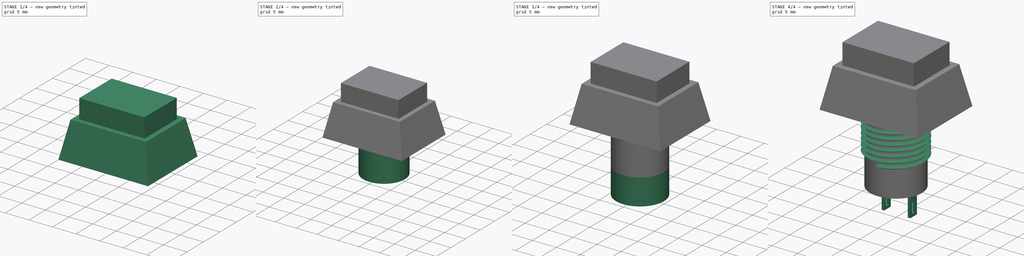
[diagram: build sequence overview — one tinted view per stage of 4, left to right]
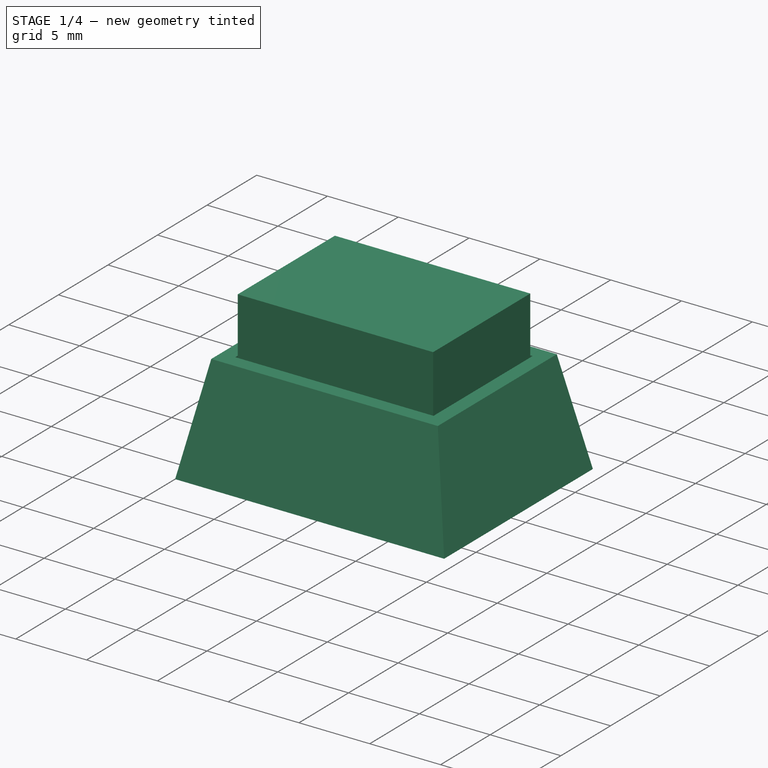
[diagram: stage 1 of 4 — iso view after this stage's code; geometry added in this stage tinted green]
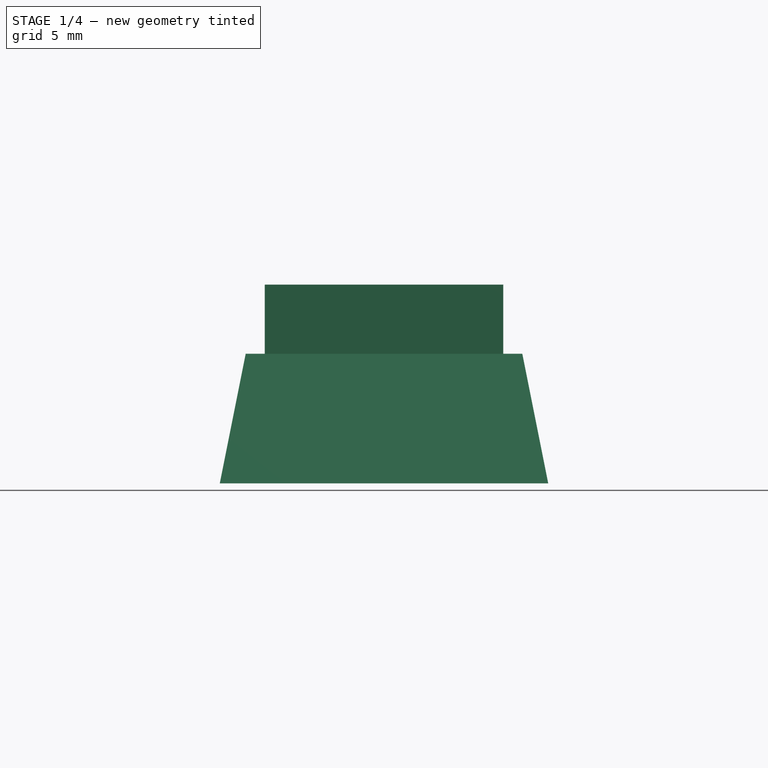
[diagram: stage 1 of 4 — front view after this stage's code; geometry added in this stage tinted green]
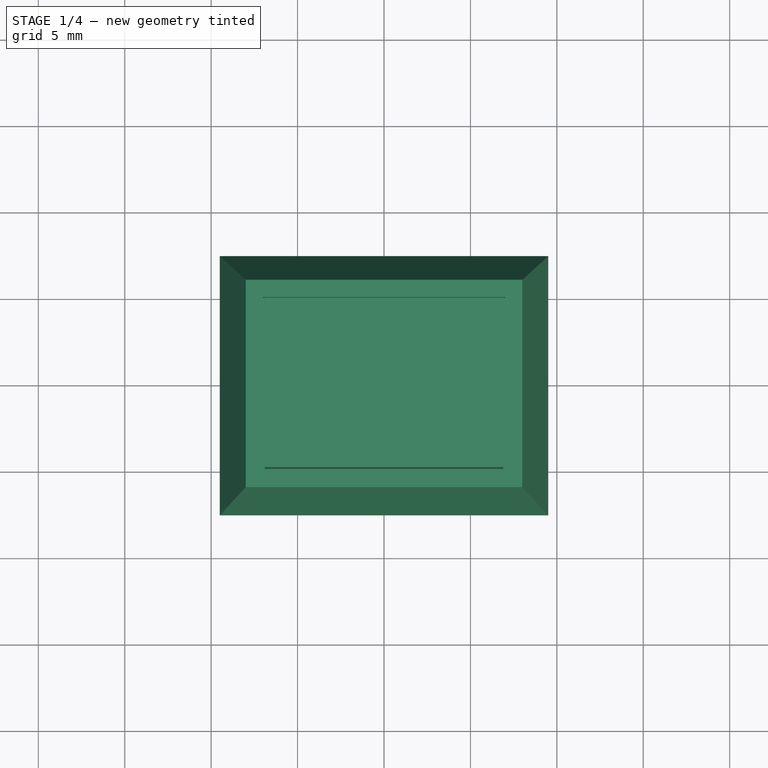
[diagram: stage 1 of 4 — top view after this stage's code; geometry added in this stage tinted green]
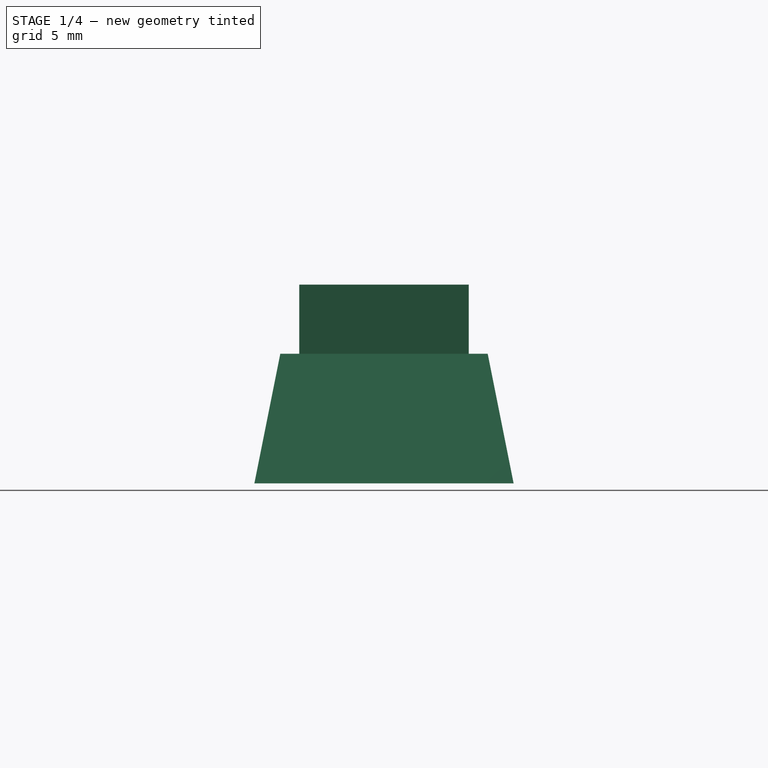
[diagram: stage 1 of 4 — right view after this stage's code; geometry added in this stage tinted green]
FCSTD DOCUMENT  (FreeCAD 0.18R16110 (Git))
Label: Miyama DS-462 3-3 Before Finishing
License: All rights reserved
LicenseURL: http://en.wikipedia.org/wiki/All_rights_reserved
objects: Sketcher::SketchObject×12, PartDesign::Pad×6, PartDesign::Pocket×3, PartDesign::AdditiveLoft×1, Part::Helix×1, PartDesign::ShapeBinder×1, PartDesign::AdditivePipe×1, PartDesign::Body×1
note: 37 computed .brp shape members not serialized (recipe doc carries the construction recipe); baked Part::Feature solids carry a one-line shape summary decoded from their .brp

FEATURE [Sketcher::SketchObject] Sketch  label="Body_Bottom_Plane"
  MapMode = 5
  Support = -> [XY_Plane]
  sketch-geometry (4):
    g0: LineSegment StartX=-9.5 StartY=7.5 StartZ=0 EndX=9.5 EndY=7.5 EndZ=0
    g1: LineSegment StartX=9.5 StartY=7.5 StartZ=0 EndX=9.5 EndY=-7.5 EndZ=0
    g2: LineSegment StartX=9.5 StartY=-7.5 StartZ=0 EndX=-9.5 EndY=-7.5 EndZ=0
    g3: LineSegment StartX=-9.5 StartY=-7.5 StartZ=0 EndX=-9.5 EndY=7.5 EndZ=0
  constraints (11):
    c: Coincident(g0,g1)
    c: Coincident(g1,g2)
    c: Coincident(g2,g3)
    c: Coincident(g3,g0)
    c: Horizontal(g0)
    c: Horizontal(g2)
    c: Vertical(g1)
    c: Vertical(g3)
    c: DistanceX(g0,g0) = 19
    c: DistanceY(g3,g3) = 15
    c: Symmetric(g0,g2,g-1)
FEATURE [Sketcher::SketchObject] Sketch001  label="Button_Projection"
  AttachmentOffset = pos=(0,0,7.5) rot=(0,0,1;0rad)
  MapMode = 5
  Placement = pos=(0,0,7.5) rot=(0,0,1;0rad)
  Support = -> [XY_Plane]
  sketch-geometry (4):
    g0: LineSegment StartX=-7 StartY=5 StartZ=0 EndX=7 EndY=5 EndZ=0
    g1: LineSegment StartX=7 StartY=5 StartZ=0 EndX=7 EndY=-5 EndZ=0
    g2: LineSegment StartX=7 StartY=-5 StartZ=0 EndX=-7 EndY=-5 EndZ=0
    g3: LineSegment StartX=-7 StartY=-5 StartZ=0 EndX=-7 EndY=5 EndZ=0
  constraints (11):
    c: Coincident(g0,g1)
    c: Coincident(g1,g2)
    c: Coincident(g2,g3)
    c: Coincident(g3,g0)
    c: Horizontal(g0)
    c: Horizontal(g2)
    c: Vertical(g1)
    c: Vertical(g3)
    c: DistanceX(g0,g0) = 14
    c: DistanceY(g1,g1) = 10
    c: Symmetric(g0,g2,g-1)
FEATURE [Sketcher::SketchObject] Sketch002  label="Body_Top_Plane"
  AttachmentOffset = pos=(0,0,7.5) rot=(0,0,1;0rad)
  ExternalGeometry = -> [Sketch001]
  MapMode = 5
  Placement = pos=(0,0,7.5) rot=(0,0,1;0rad)
  Support = -> [XY_Plane]
  sketch-geometry (4):
    g0: LineSegment StartX=-8 StartY=6 StartZ=0 EndX=8 EndY=6 EndZ=0
    g1: LineSegment StartX=8 StartY=6 StartZ=0 EndX=8 EndY=-6 EndZ=0
    g2: LineSegment StartX=8 StartY=-6 StartZ=0 EndX=-8 EndY=-6 EndZ=0
    g3: LineSegment StartX=-8 StartY=-6 StartZ=0 EndX=-8 EndY=6 EndZ=0
  constraints (11):
    c: Coincident(g0,g1)
    c: Coincident(g1,g2)
    c: Coincident(g2,g3)
    c: Coincident(g3,g0)
    c: Horizontal(g0)
    c: Horizontal(g2)
    c: Vertical(g1)
    c: Vertical(g3)
    c: Symmetric(g0,g2,g-1)
    c: DistanceY(g-4,g0) = 1
    c: DistanceX(g0,g-4) = 1
FEATURE [PartDesign::AdditiveLoft] AdditiveLoft
  Closed = true
  Profile = -> Sketch
  Ruled = false
  Sections = -> [Sketch002]
FEATURE [PartDesign::Pocket] Pocket
  BaseFeature = -> AdditiveLoft
  Length = 3
  Length2 = 100
  Profile = -> Sketch001
  Type = 0
FEATURE [Sketcher::SketchObject] Sketch004  label="Button"
  ExternalGeometry = -> [Pocket]
  MapMode = 5
  Placement = pos=(0,0,4.5) rot=(0,0,1;0rad)
  Support = -> [Pocket]
  sketch-geometry (4):
    g0: LineSegment StartX=-6.9 StartY=4.9 StartZ=0 EndX=6.9 EndY=4.9 EndZ=0
    g1: LineSegment StartX=6.9 StartY=4.9 StartZ=0 EndX=6.9 EndY=-4.9 EndZ=0
    g2: LineSegment StartX=6.9 StartY=-4.9 StartZ=0 EndX=-6.9 EndY=-4.9 EndZ=0
    g3: LineSegment StartX=-6.9 StartY=-4.9 StartZ=0 EndX=-6.9 EndY=4.9 EndZ=0
  constraints (11):
    c: Coincident(g0,g1)
    c: Coincident(g1,g2)
    c: Coincident(g2,g3)
    c: Coincident(g3,g0)
    c: Horizontal(g0)
    c: Horizontal(g2)
    c: Vertical(g1)
    c: Vertical(g3)
    c: Symmetric(g0,g2,g-1)
    c: DistanceX(g0,g-6) = 0.1
    c: DistanceY(g0,g-6) = 0.1
FEATURE [PartDesign::Pad] Pad
  BaseFeature = -> Pocket
  Length = 7
  Length2 = 100
  Profile = -> Sketch004
  Type = 0
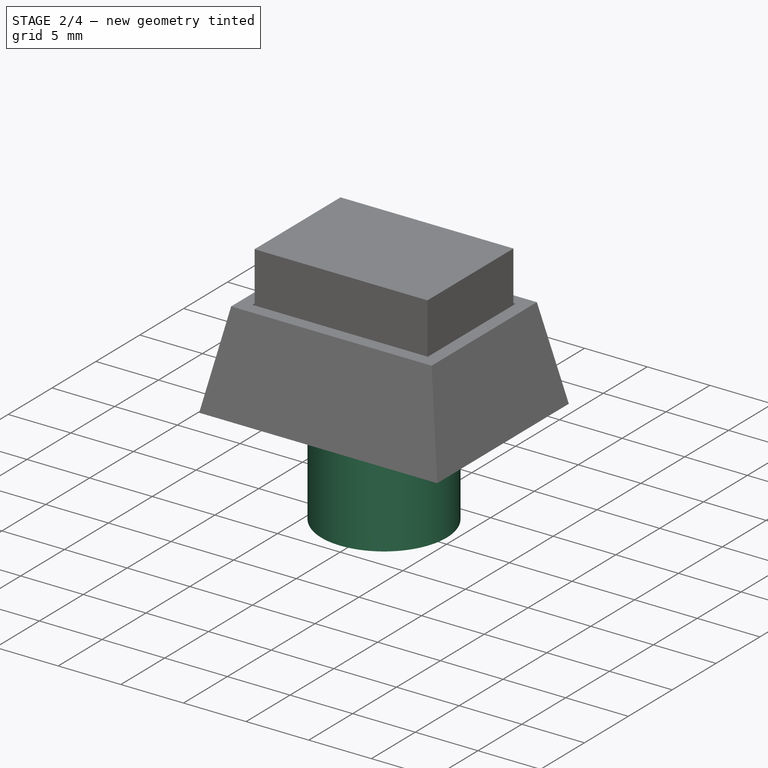
[diagram: stage 2 of 4 — iso view after this stage's code; geometry added in this stage tinted green]
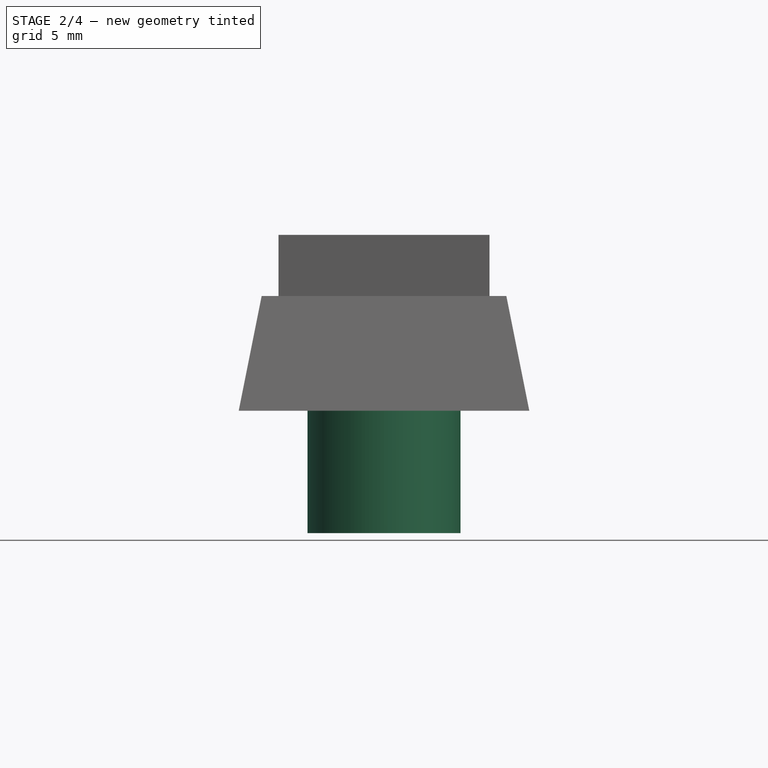
[diagram: stage 2 of 4 — front view after this stage's code; geometry added in this stage tinted green]
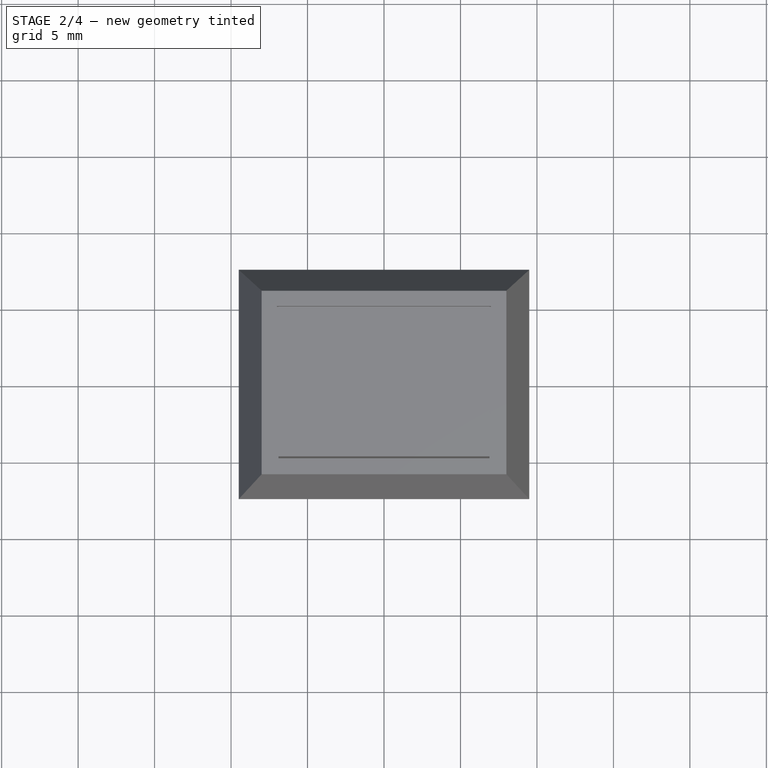
[diagram: stage 2 of 4 — top view after this stage's code; geometry added in this stage tinted green]
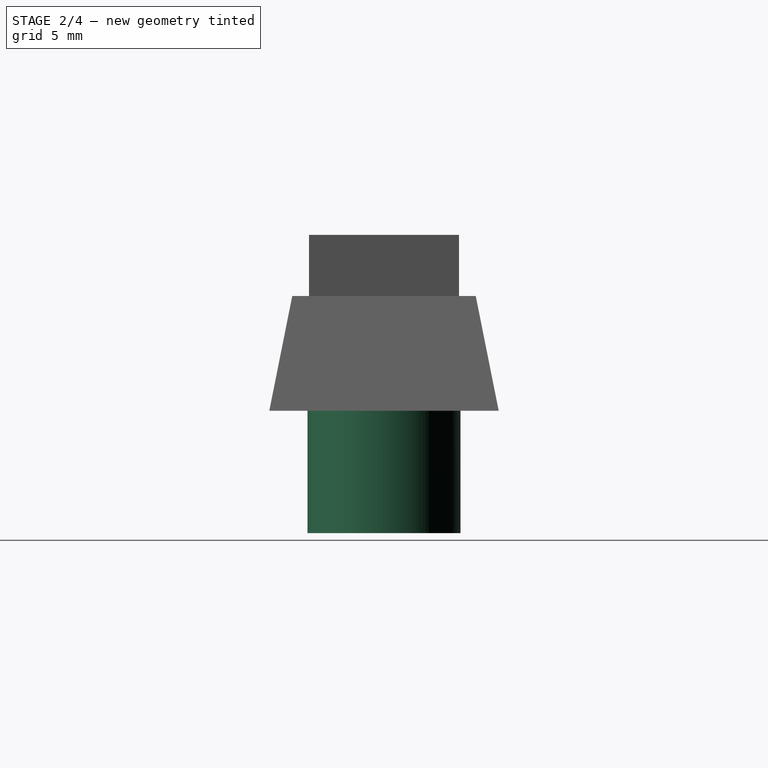
[diagram: stage 2 of 4 — right view after this stage's code; geometry added in this stage tinted green]
FEATURE [Sketcher::SketchObject] Sketch006
  ExternalGeometry = -> [Pad]
  MapMode = 5
  Placement = pos=(0,0,0) rot=(1,0,0;3.14159rad)
  Support = -> [Pad]
  sketch-geometry (4):
    g0: LineSegment StartX=-8.5 StartY=6.5 StartZ=0 EndX=8.5 EndY=6.5 EndZ=0
    g1: LineSegment StartX=8.5 StartY=6.5 StartZ=0 EndX=8.5 EndY=-6.5 EndZ=0
    g2: LineSegment StartX=8.5 StartY=-6.5 StartZ=0 EndX=-8.5 EndY=-6.5 EndZ=0
    g3: LineSegment StartX=-8.5 StartY=-6.5 StartZ=0 EndX=-8.5 EndY=6.5 EndZ=0
  constraints (11):
    c: Coincident(g0,g1)
    c: Coincident(g1,g2)
    c: Coincident(g2,g3)
    c: Coincident(g3,g0)
    c: Horizontal(g0)
    c: Horizontal(g2)
    c: Vertical(g1)
    c: Vertical(g3)
    c: DistanceY(g0,g-4) = 1
    c: DistanceX(g0,g-4) = 1
    c: Symmetric(g0,g2,g-1)
FEATURE [PartDesign::Pocket] Pocket001
  BaseFeature = -> Pad
  Length = 2.5
  Length2 = 100
  Profile = -> Sketch006
  Type = 0
FEATURE [Sketcher::SketchObject] Sketch007
  ExternalGeometry = -> [Sketch006,Sketch]
  MapMode = 5
  Placement = pos=(0,0,2.5) rot=(0,0,1;3.14159rad)
  Support = -> [Pocket001]
  sketch-geometry (2):
    g0: Circle CenterX=0 CenterY=0 CenterZ=0 NormalX=0 NormalY=0 NormalZ=1 AngleXU=0 Radius=7
    g1: LineSegment [constr] StartX=-8.5 StartY=6.5 StartZ=0 EndX=9.5 EndY=7.5 EndZ=0
  constraints (4):
    c: Coincident(g0,g-1)
    c: Coincident(g1,g-3)
    c: Coincident(g1,g-4)
    c: Radius(g0) = 7
FEATURE [PartDesign::Pad] Pad001
  BaseFeature = -> Pocket001
  Length = 2.5
  Length2 = 100
  Profile = -> Sketch007
  Reversed = true
  Type = 0
FEATURE [Sketcher::SketchObject] Sketch008
  AttachmentOffset = pos=(0,0,0) rot=(0,0,1;1.5708rad)
  MapMode = 5
  Placement = pos=(0,0,0) rot=(0.707107,-0.707107,0;3.14159rad)
  Support = -> [Pad001]
  sketch-geometry (1):
    g0: Circle CenterX=0 CenterY=0 CenterZ=0 NormalX=0 NormalY=0 NormalZ=1 AngleXU=0 Radius=5
  constraints (2):
    c: Coincident(g0,g-1)
    c: Radius(g0) = 5
FEATURE [PartDesign::Pad] Pad002
  BaseFeature = -> Pad001
  Length = 8
  Length2 = 100
  Profile = -> Sketch008
  Type = 0
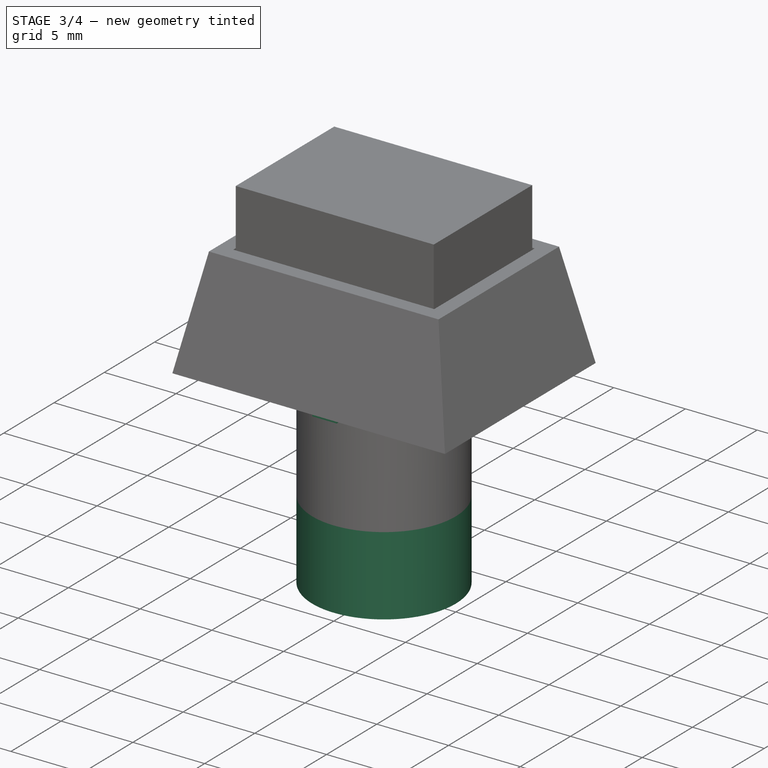
[diagram: stage 3 of 4 — iso view after this stage's code; geometry added in this stage tinted green]
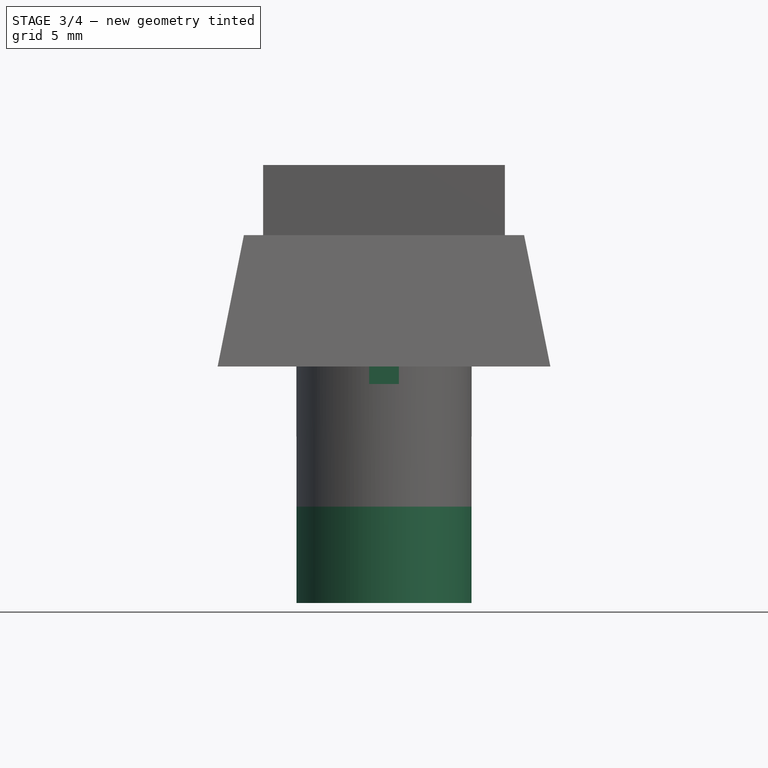
[diagram: stage 3 of 4 — front view after this stage's code; geometry added in this stage tinted green]
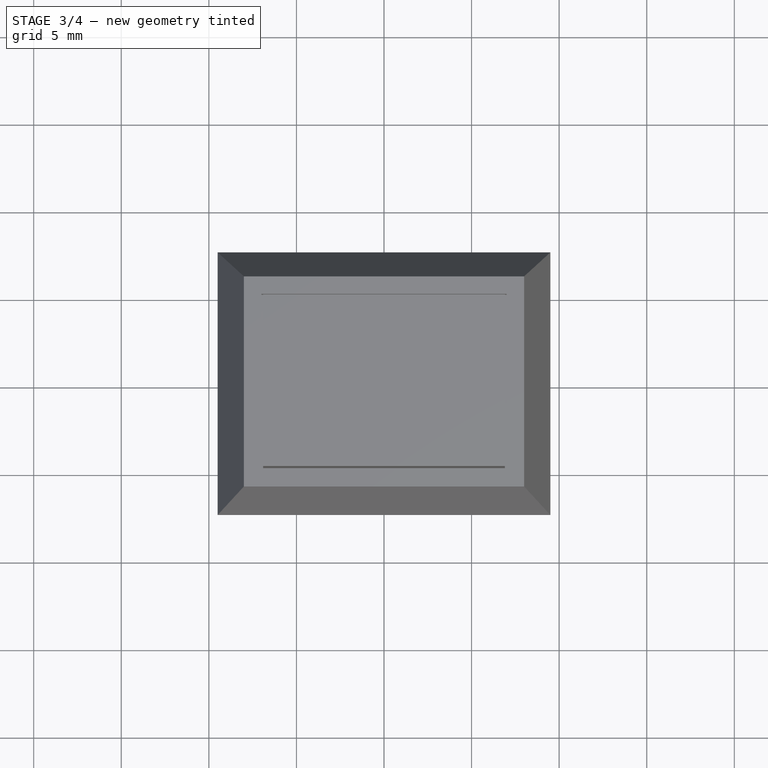
[diagram: stage 3 of 4 — top view after this stage's code; geometry added in this stage tinted green]
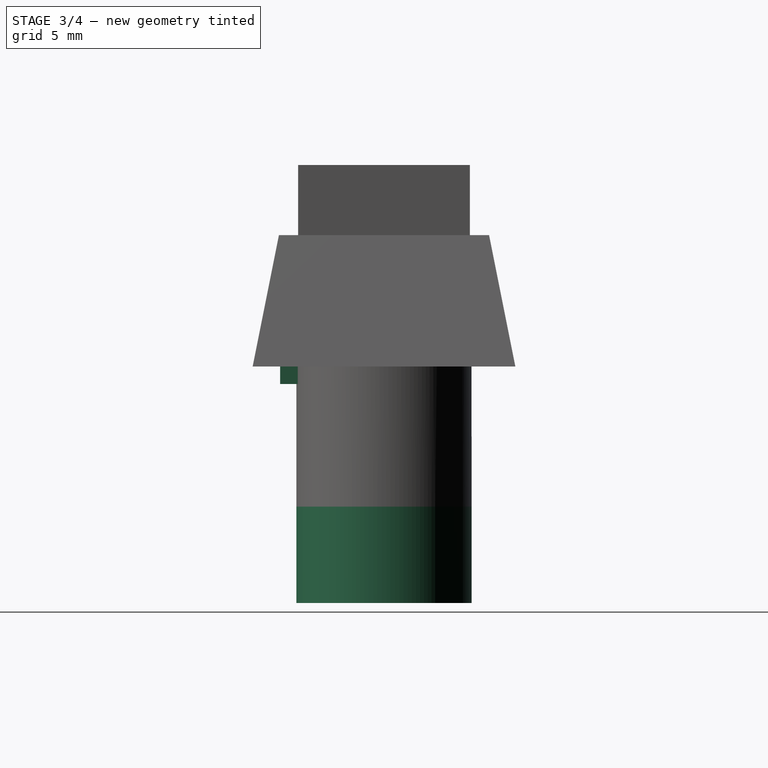
[diagram: stage 3 of 4 — right view after this stage's code; geometry added in this stage tinted green]
FEATURE [Sketcher::SketchObject] Sketch009
  ExternalGeometry = -> [Sketch008]
  MapMode = 5
  Placement = pos=(0,0,0) rot=(1,0,0;3.14159rad)
  Support = -> [Pad002]
  sketch-geometry (4):
    g0: LineSegment StartX=-0.85 StartY=5.92722 StartZ=0 EndX=0.85 EndY=5.92722 EndZ=0
    g1: LineSegment StartX=0.85 StartY=5.92722 StartZ=0 EndX=0.85 EndY=4.92722 EndZ=0
    g2: LineSegment StartX=-0.85 StartY=5.92722 StartZ=0 EndX=-0.85 EndY=4.92722 EndZ=0
    g3: ArcOfCircle CenterX=0 CenterY=0 CenterZ=0 NormalX=0 NormalY=0 NormalZ=1 AngleXU=0 Radius=5 StartAngle=1.39997 EndAngle=1.74163
  constraints (12):
    c: Horizontal(g0)
    c: Coincident(g1,g0)
    c: Vertical(g1)
    c: Coincident(g2,g0)
    c: Vertical(g2)
    c: Coincident(g3,g1)
    c: Coincident(g3,g2)
    c: DistanceY(g1,g1) = 1
    c: DistanceX(g0,g0) = 1.7
    c: Coincident(g3,g-1)
    c: Equal(g1,g2)
    c: Tangent(g3,g-3)
FEATURE [PartDesign::Pad] Pad003
  BaseFeature = -> Pad002
  Length = 1
  Length2 = 100
  Profile = -> Sketch009
  Type = 0
FEATURE [Sketcher::SketchObject] Sketch010
  AttachmentOffset = pos=(0,0,0) rot=(0,0,1;1.5708rad)
  ExternalGeometry = -> [Pad002]
  MapMode = 5
  Placement = pos=(0,0,-8) rot=(0.707107,-0.707107,0;3.14159rad)
  Support = -> [Pad002]
  sketch-geometry (1):
    g0: Circle CenterX=0 CenterY=0 CenterZ=0 NormalX=0 NormalY=0 NormalZ=1 AngleXU=0 Radius=5
  constraints (2):
    c: Coincident(g0,g-1)
    c: Tangent(g0,g-3)
FEATURE [PartDesign::Pad] Pad004
  BaseFeature = -> Pad003
  Length = 5.5
  Length2 = 100
  Profile = -> Sketch010
  Type = 0
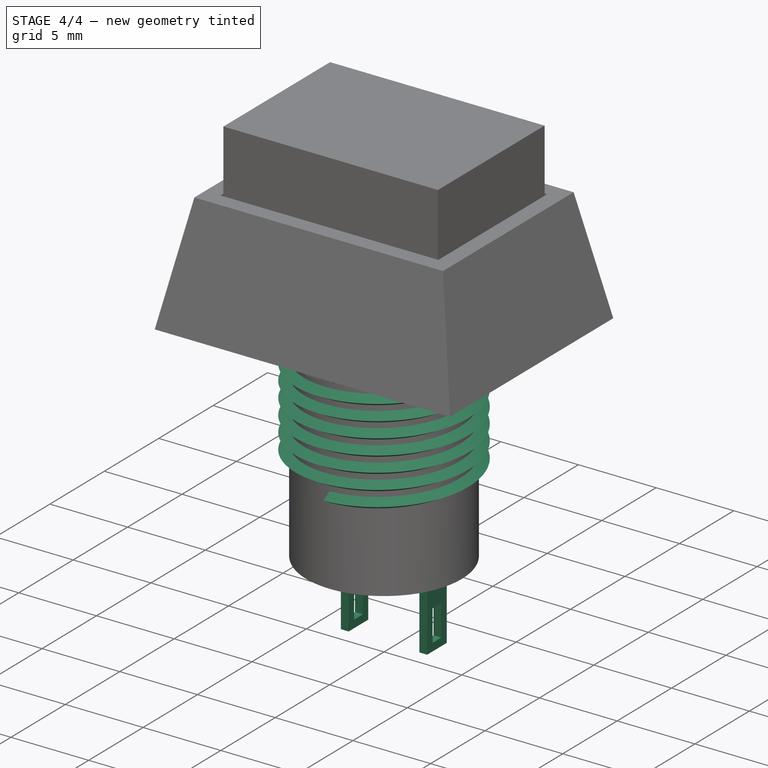
[diagram: stage 4 of 4 — iso view after this stage's code; geometry added in this stage tinted green]
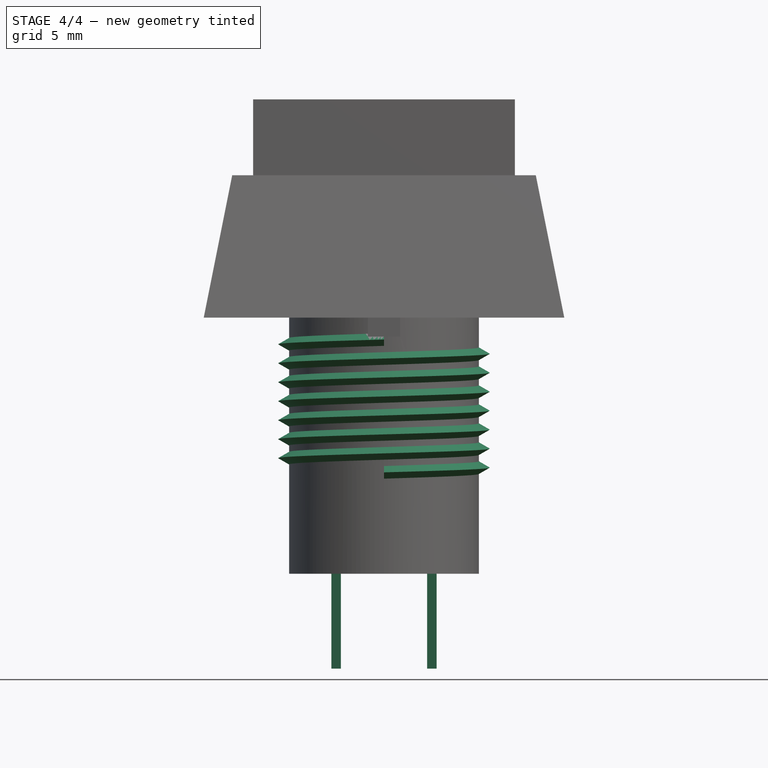
[diagram: stage 4 of 4 — front view after this stage's code; geometry added in this stage tinted green]
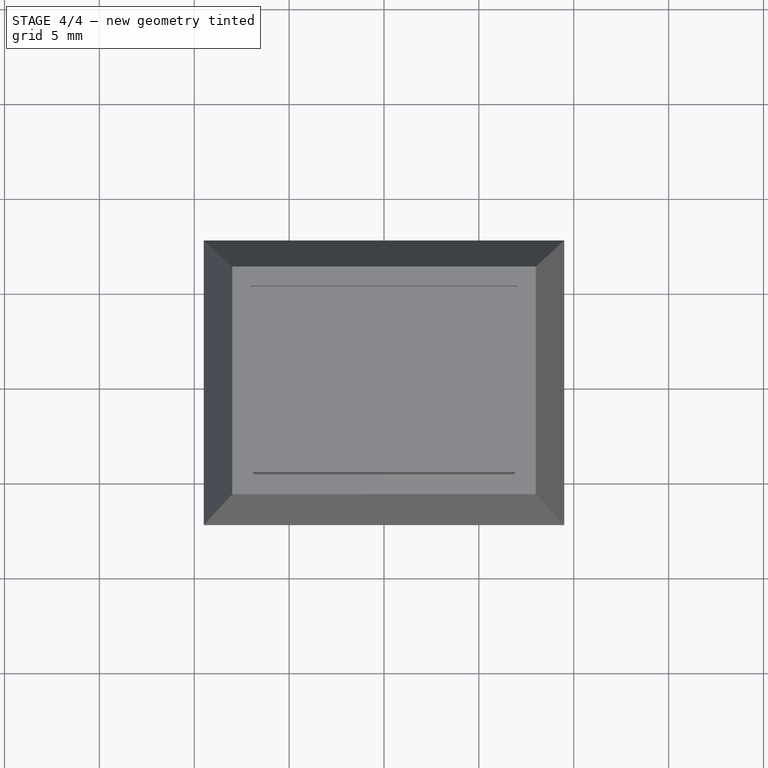
[diagram: stage 4 of 4 — top view after this stage's code; geometry added in this stage tinted green]
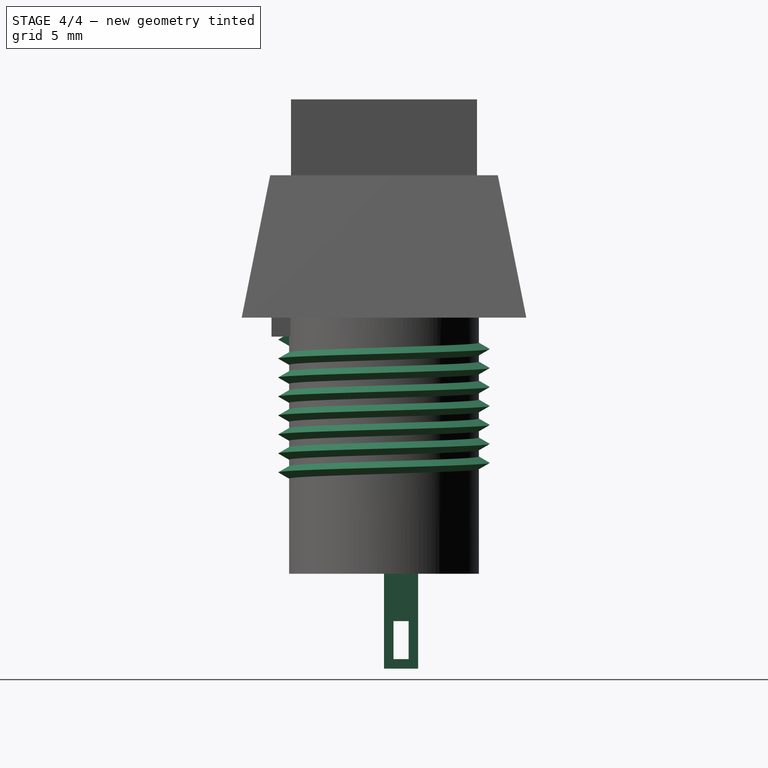
[diagram: stage 4 of 4 — right view after this stage's code; geometry added in this stage tinted green]
FEATURE [Part::Helix] Helix
  Angle = 0
  AttacherType = Attacher::AttachEngine3D
  Height = 7
  LocalCoord = 0
  Pitch = 1
  Placement = pos=(0,0,-8) rot=(0,0,1;4.71239rad)
  Radius = 5
  Style = 1
FEATURE [PartDesign::ShapeBinder] ShapeBinder
  Placement = pos=(0,0,-8) rot=(0,0,-1;1.5708rad)
  Support = -> [Helix]
  TraceSupport = false
FEATURE [Sketcher::SketchObject] Sketch012
  MapMode = 5
  Placement = pos=(0,0,0) rot=(0.57735,0.57735,0.57735;2.0944rad)
  Support = -> [YZ_Plane]
  sketch-geometry (3):
    g0: LineSegment StartX=4.55635 StartY=-1.06813 StartZ=0 EndX=4.55635 EndY=-2.24505 EndZ=0
    g1: LineSegment StartX=4.55635 StartY=-2.24505 StartZ=0 EndX=5.5756 EndY=-1.65659 EndZ=0
    g2: LineSegment StartX=5.5756 StartY=-1.65659 StartZ=0 EndX=4.55635 EndY=-1.06813 EndZ=0
  constraints (6):
    c: Coincident(g2,g1)
    c: Coincident(g2,g0)
    c: Vertical(g0)
    c: Equal(g2,g1)
    c: Equal(g2,g0)
    c: Coincident(g1,g0)
FEATURE [PartDesign::AdditivePipe] AdditivePipe
  AuxilleryCurvelinear = true
  AuxillerySpineTangent = false
  BaseFeature = -> Pad004
  Binormal = (0,0,0)
  Mode = 2
  Profile = -> Sketch012
  Spine = -> ShapeBinder
  SpineTangent = false
  Transformation = 0
  Transition = 0
FEATURE [Sketcher::SketchObject] Sketch013
  MapMode = 5
  Placement = pos=(0,0,-13.5) rot=(1,0,0;3.14159rad)
  Support = -> [AdditivePipe]
  sketch-geometry (10):
    g0: LineSegment StartX=-2.775 StartY=0 StartZ=0 EndX=-2.275 EndY=0 EndZ=0
    g1: LineSegment StartX=-2.275 StartY=0 StartZ=0 EndX=-2.275 EndY=-1.8 EndZ=0
    g2: LineSegment StartX=-2.275 StartY=-1.8 StartZ=0 EndX=-2.775 EndY=-1.8 EndZ=0
    g3: LineSegment StartX=-2.775 StartY=-1.8 StartZ=0 EndX=-2.775 EndY=0 EndZ=0
    g4: LineSegment StartX=2.275 StartY=0 StartZ=0 EndX=2.775 EndY=0 EndZ=0
    g5: LineSegment StartX=2.775 StartY=0 StartZ=0 EndX=2.775 EndY=-1.8 EndZ=0
    g6: LineSegment StartX=2.775 StartY=-1.8 StartZ=0 EndX=2.275 EndY=-1.8 EndZ=0
    g7: LineSegment StartX=2.275 StartY=-1.8 StartZ=0 EndX=2.275 EndY=0 EndZ=0
    g8: LineSegment [constr] StartX=2.275 StartY=-1.8 StartZ=0 EndX=0 EndY=0 EndZ=0
    g9: LineSegment [constr] StartX=0 StartY=0 StartZ=0 EndX=-2.275 EndY=-1.8 EndZ=0
  constraints (27):
    c: Coincident(g0,g1)
    c: Coincident(g1,g2)
    c: Coincident(g2,g3)
    c: Coincident(g3,g0)
    c: Horizontal(g0)
    c: Vertical(g1)
    c: Vertical(g3)
    c: Coincident(g4,g5)
    c: Coincident(g5,g6)
    c: Coincident(g6,g7)
    c: Coincident(g7,g4)
    c: Horizontal(g4)
    c: Vertical(g5)
    c: Vertical(g7)
    c: DistanceX(g0,g0) = 0.5
    c: DistanceX(g4,g4) = 0.5
    c: DistanceY(g5,g5) = 1.8
    c: DistanceY(g1,g1) = 1.8
    c: DistanceX(g1,g6) = 4.55
    c: Tangent(g2,g6)
    c: PointOnObject(g0,g-1)
    c: Coincident(g8,g6)
    c: Coincident(g8,g-1)
    c: Coincident(g9,g-1)
    c: Coincident(g9,g1)
    c: Equal(g8,g9)
    c: PointOnObject(g4,g-1)
FEATURE [PartDesign::Pad] Pad005
  BaseFeature = -> AdditivePipe
  Length = 5
  Length2 = 100
  Profile = -> Sketch013
  Type = 0
FEATURE [Sketcher::SketchObject] Sketch014
  ExternalGeometry = -> [Pad005]
  MapMode = 5
  Placement = pos=(2.775,0,0) rot=(0.57735,0.57735,0.57735;2.0944rad)
  Support = -> [Pad005]
  sketch-geometry (6):
    g0: LineSegment StartX=0.5 StartY=-16 StartZ=0 EndX=1.3 EndY=-16 EndZ=0
    g1: LineSegment StartX=1.3 StartY=-16 StartZ=0 EndX=1.3 EndY=-18 EndZ=0
    g2: LineSegment StartX=1.3 StartY=-18 StartZ=0 EndX=0.5 EndY=-18 EndZ=0
    g3: LineSegment StartX=0.5 StartY=-18 StartZ=0 EndX=0.5 EndY=-16 EndZ=0
    g4: LineSegment [constr] StartX=0 StartY=-18.5 StartZ=0 EndX=0.5 EndY=-18 EndZ=0
    g5: LineSegment [constr] StartX=1.3 StartY=-18 StartZ=0 EndX=1.8 EndY=-18.5 EndZ=0
  constraints (16):
    c: Coincident(g0,g1)
    c: Coincident(g1,g2)
    c: Coincident(g2,g3)
    c: Coincident(g3,g0)
    c: Horizontal(g0)
    c: Horizontal(g2)
    c: Vertical(g1)
    c: Vertical(g3)
    c: DistanceX(g0,g0) = 0.8
    c: DistanceY(g1,g1) = 2
    c: Coincident(g4,g-3)
    c: Coincident(g4,g2)
    c: Coincident(g5,g1)
    c: Coincident(g5,g-3)
    c: Equal(g5,g4)
    c: DistanceY(g5,g1) = 0.5
FEATURE [PartDesign::Pocket] Pocket002
  BaseFeature = -> Pad005
  Length = 5
  Length2 = 100
  Profile = -> Sketch014
  Type = 1
FEATURE [PartDesign::Body] Body
  Group = -> [Sketch,Sketch001,Sketch002,AdditiveLoft,Pocket,Sketch004,Pad,Sketch006,Pocket001,Sketch007,Pad001,Sketch008,Pad002,Sketch009,Pad003,Sketch010,Pad004,ShapeBinder,Sketch012,AdditivePipe,Sketch013,Pad005,Sketch014,Pocket002]
  Origin = -> Origin
  Tip = -> Pocket002
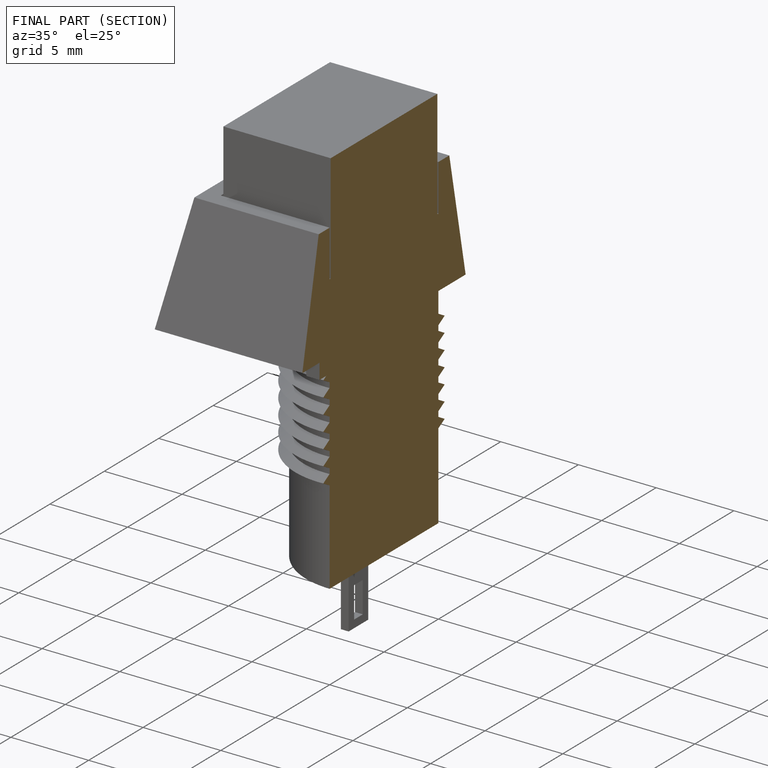
[diagram: finished part — half-section view (interior)]
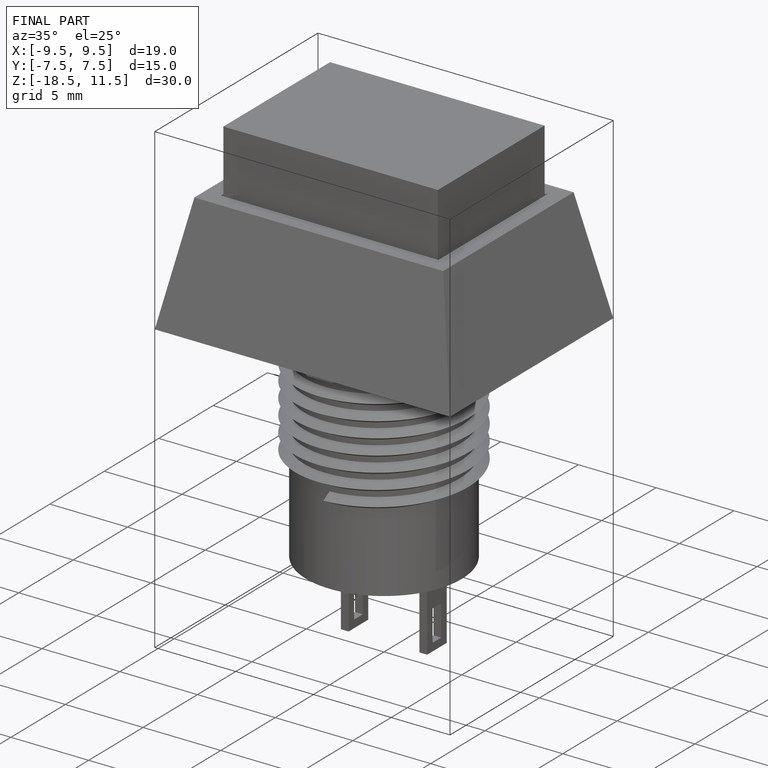
[diagram: finished part — iso view with bounding-box wireframe]
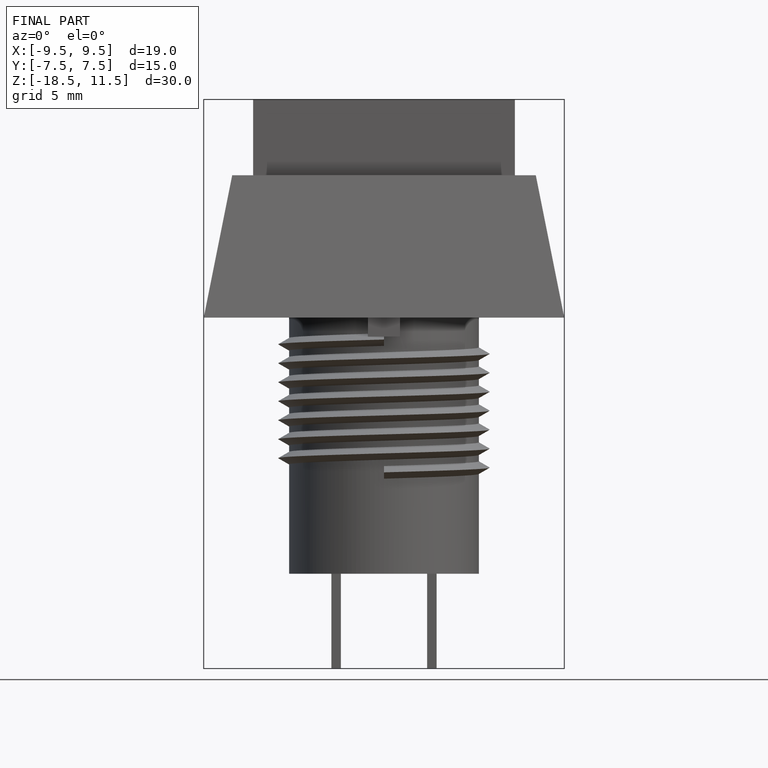
[diagram: finished part — front view with bounding-box wireframe]
